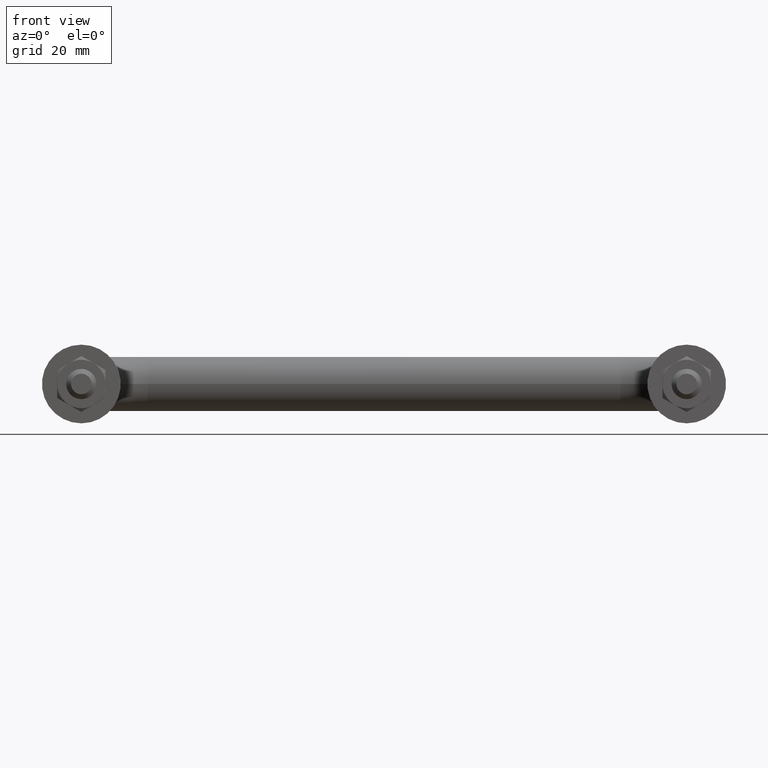
[diagram: clean part render]
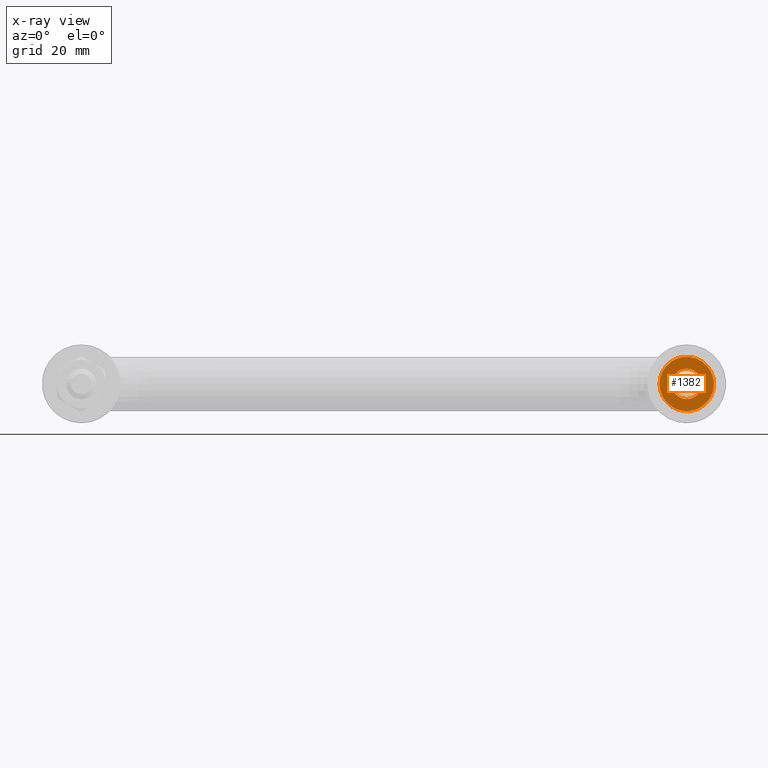
[diagram: x-ray — body ghosted, one internal face saturated and labeled with its STEP entity id]
A machine part, front view, then the same camera in x-ray: the body is ghosted and one INTERNAL B-rep face — a face not visible from any outside direction — is saturated and labeled: STEP entity #1382.
In plain terms, the highlighted planar face has unit normal (-0, -1, 0).
Its self-contained STEP definition (entity closure, byte-faithful):
#3 = DIRECTION ( 'NONE',  ( 1.000000000000000000, -1.431847554560484400E-015, 0.0000000000000000000 ) ) ;
#29 = ORIENTED_EDGE ( 'NONE', *, *, #794, .T. ) ;
#37 = CARTESIAN_POINT ( 'NONE',  ( 45.50000000000000000, -1.610809119217631700E-014, 5.510910596163105300E-016 ) ) ;
#112 = CIRCLE ( 'NONE', #163, 2.500000000000002200 ) ;
#133 = FACE_BOUND ( 'NONE', #338, .T. ) ;
#163 = AXIS2_PLACEMENT_3D ( 'NONE', #533, #545, #3 ) ;
#243 = CARTESIAN_POINT ( 'NONE',  ( 49.99999999999999300, -2.255140518769849200E-014, 0.0000000000000000000 ) ) ;
#245 = DIRECTION ( 'NONE',  ( -1.431847554560484000E-015, -1.000000000000000000, 0.0000000000000000000 ) ) ;
#279 = CARTESIAN_POINT ( 'NONE',  ( 49.99999999999999300, -2.255140518769849200E-014, 0.0000000000000000000 ) ) ;
#298 = AXIS2_PLACEMENT_3D ( 'NONE', #1074, #245, #1212 ) ;
#338 = EDGE_LOOP ( 'NONE', ( #1071, #612 ) ) ;
#346 = CARTESIAN_POINT ( 'NONE',  ( 49.99999999999999300, -2.255140518769849200E-014, 0.0000000000000000000 ) ) ;
#355 = EDGE_CURVE ( 'NONE', #1069, #1026, #1342, .T. ) ;
#368 = CIRCLE ( 'NONE', #754, 4.499999999999998200 ) ;
#397 = DIRECTION ( 'NONE',  ( 0.0000000000000000000, 0.0000000000000000000, 1.000000000000000000 ) ) ;
#452 = DIRECTION ( 'NONE',  ( 0.0000000000000000000, 0.0000000000000000000, 1.000000000000000000 ) ) ;
#458 = PLANE ( 'NONE',  #661 ) ;
#481 = ORIENTED_EDGE ( 'NONE', *, *, #1481, .T. ) ;
#494 = DIRECTION ( 'NONE',  ( -1.431847554560484000E-015, -1.000000000000000000, 0.0000000000000000000 ) ) ;
#533 = CARTESIAN_POINT ( 'NONE',  ( 49.99999999999999300, -2.255140518769849200E-014, 0.0000000000000000000 ) ) ;
#545 = DIRECTION ( 'NONE',  ( -1.431847554560484000E-015, -1.000000000000000000, 0.0000000000000000000 ) ) ;
#573 = EDGE_LOOP ( 'NONE', ( #481, #29 ) ) ;
#612 = ORIENTED_EDGE ( 'NONE', *, *, #1749, .F. ) ;
#617 = CIRCLE ( 'NONE', #1697, 4.499999999999998200 ) ;
#637 = CARTESIAN_POINT ( 'NONE',  ( 49.99999999999999300, -2.255140518769849200E-014, -2.500000000000002200 ) ) ;
#661 = AXIS2_PLACEMENT_3D ( 'NONE', #243, #1574, #397 ) ;
#754 = AXIS2_PLACEMENT_3D ( 'NONE', #346, #494, #452 ) ;
#793 = DIRECTION ( 'NONE',  ( 0.0000000000000000000, 0.0000000000000000000, 1.000000000000000000 ) ) ;
#794 = EDGE_CURVE ( 'NONE', #1178, #857, #617, .T. ) ;
#814 = FACE_OUTER_BOUND ( 'NONE', #573, .T. ) ;
#857 = VERTEX_POINT ( 'NONE', #1772 ) ;
#1026 = VERTEX_POINT ( 'NONE', #637 ) ;
#1069 = VERTEX_POINT ( 'NONE', #1454 ) ;
#1071 = ORIENTED_EDGE ( 'NONE', *, *, #355, .F. ) ;
#1074 = CARTESIAN_POINT ( 'NONE',  ( 49.99999999999999300, -2.255140518769849200E-014, 0.0000000000000000000 ) ) ;
#1178 = VERTEX_POINT ( 'NONE', #37 ) ;
#1212 = DIRECTION ( 'NONE',  ( 1.000000000000000000, -1.431847554560484400E-015, 0.0000000000000000000 ) ) ;
#1342 = CIRCLE ( 'NONE', #298, 2.500000000000002200 ) ;
#1378 = DIRECTION ( 'NONE',  ( -1.431847554560484000E-015, -1.000000000000000000, 0.0000000000000000000 ) ) ;
#1382 = ADVANCED_FACE ( 'NONE', ( #133, #814 ), #458, .T. ) ;
#1454 = CARTESIAN_POINT ( 'NONE',  ( 49.99999999999999300, -2.255140518769849200E-014, 2.500000000000002200 ) ) ;
#1481 = EDGE_CURVE ( 'NONE', #857, #1178, #368, .T. ) ;
#1574 = DIRECTION ( 'NONE',  ( -1.431847554560484000E-015, -1.000000000000000000, 0.0000000000000000000 ) ) ;
#1697 = AXIS2_PLACEMENT_3D ( 'NONE', #279, #1378, #793 ) ;
#1749 = EDGE_CURVE ( 'NONE', #1026, #1069, #112, .T. ) ;
#1772 = CARTESIAN_POINT ( 'NONE',  ( 54.49999999999999300, -2.899471918322066400E-014, 0.0000000000000000000 ) ) ;